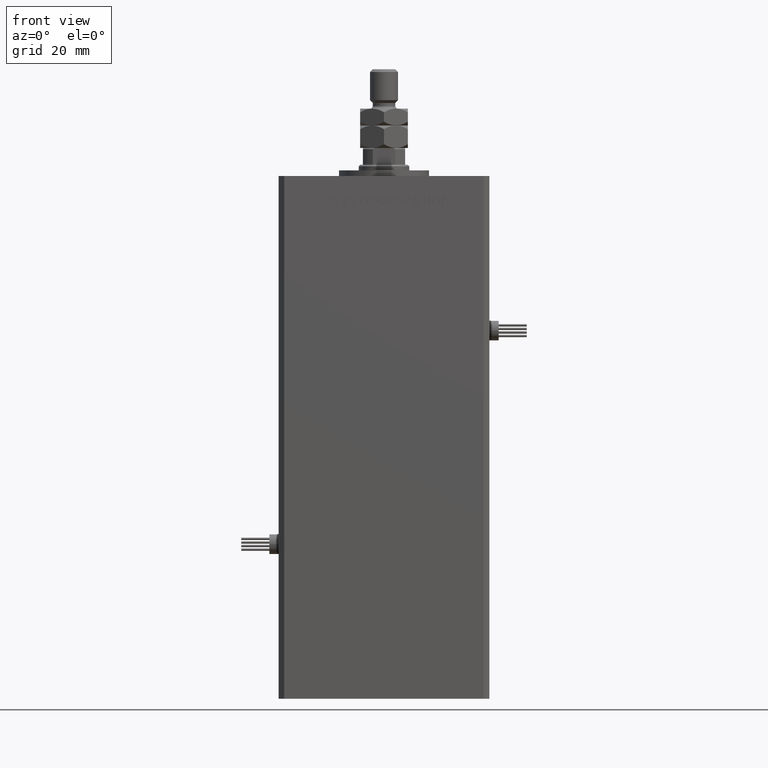
[diagram: clean part render]
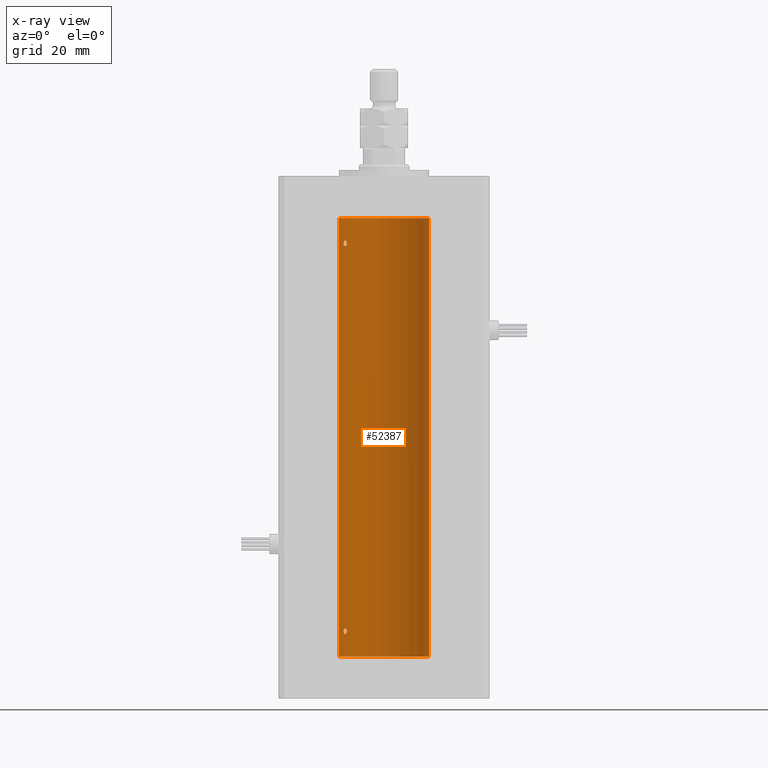
[diagram: x-ray — body ghosted, one internal face saturated and labeled with its STEP entity id]
A machine part, front view, then the same camera in x-ray: the body is ghosted and one INTERNAL B-rep face — a face not visible from any outside direction — is saturated and labeled: STEP entity #52387.
In plain terms, the highlighted cylindrical surface (partial cylindrical patch) has radius 16 mm, axis along (-0, -0, -1).
Its self-contained STEP definition (entity closure, byte-faithful):
#478 = CARTESIAN_POINT ( 'NONE',  ( -14.38749456993815912, 6.999999999999998224, 147.0000000000000284 ) ) ;
#773 = CARTESIAN_POINT ( 'NONE',  ( -14.37250282441143945, 7.031013007322939323, 146.7168569960373077 ) ) ;
#1608 = CARTESIAN_POINT ( 'NONE',  ( -14.27547848986622370, 7.226527013162184154, 146.3525557301815354 ) ) ;
#1682 = CARTESIAN_POINT ( 'NONE',  ( -13.22875655532295802, 8.999999999999996447, 147.0000000000000284 ) ) ;
#2879 = LINE ( 'NONE', #16329, #41179 ) ;
#3134 = EDGE_CURVE ( 'NONE', #19337, #31046, #45391, .T. ) ;
#3136 = CARTESIAN_POINT ( 'NONE',  ( -13.91892506969882959, 7.891973478508852224, 10.00155212263243953 ) ) ;
#3388 = CARTESIAN_POINT ( 'NONE',  ( 0.000000000000000000, 0.000000000000000000, 0.000000000000000000 ) ) ;
#3419 = CARTESIAN_POINT ( 'NONE',  ( -13.22875655532295447, 8.999999999999996447, 9.140644760917734146 ) ) ;
#3646 = VERTEX_POINT ( 'NONE', #1682 ) ;
#3853 = CARTESIAN_POINT ( 'NONE',  ( -14.38749456993815556, 6.999999999999997335, 8.857147409635411250 ) ) ;
#4130 = CARTESIAN_POINT ( 'NONE',  ( -14.27547848986622014, 7.226527013162185931, 8.352555730181528304 ) ) ;
#4875 = CARTESIAN_POINT ( 'NONE',  ( -13.98878315975728803, 7.767347947480344850, 147.9805461432612788 ) ) ;
#5042 = CARTESIAN_POINT ( 'NONE',  ( -13.98699950016872151, 7.770591669637114229, 146.0184768166484446 ) ) ;
#5442 = CARTESIAN_POINT ( 'NONE',  ( -13.91892506969882071, 7.891973478508848672, 148.0015521226324040 ) ) ;
#5711 = CARTESIAN_POINT ( 'NONE',  ( -14.27521483392928836, 7.227035590538638310, 147.6478598706881940 ) ) ;
#6264 = AXIS2_PLACEMENT_3D ( 'NONE', #3388, #42127, #29771 ) ;
#6919 = CARTESIAN_POINT ( 'NONE',  ( -16.00000000000000000, 0.000000000000000000, 0.000000000000000000 ) ) ;
#7151 = DIRECTION ( 'NONE',  ( -0.000000000000000000, -0.000000000000000000, -1.000000000000000000 ) ) ;
#7230 = EDGE_CURVE ( 'NONE', #24868, #49492, #20538, .T. ) ;
#7569 = CARTESIAN_POINT ( 'NONE',  ( -13.22875655532295447, 8.999999999999996447, 9.000000000000000000 ) ) ;
#8546 = CARTESIAN_POINT ( 'NONE',  ( -13.98878315975729159, 7.767347947480346626, 9.980546143261280534 ) ) ;
#8834 = CARTESIAN_POINT ( 'NONE',  ( -13.32457971225032445, 8.857769707964649797, 9.531999662746555302 ) ) ;
#9072 = CARTESIAN_POINT ( 'NONE',  ( -13.25390108270225120, 8.962947079338391632, 146.7214357623584533 ) ) ;
#9457 = CARTESIAN_POINT ( 'NONE',  ( -14.17576283486774891, 7.420212263225987925, 147.8252530343044100 ) ) ;
#9678 = B_SPLINE_CURVE_WITH_KNOTS ( 'NONE', 3,
 ( #478, #49244, #773, #18507, #1608, #27132, #52972, #5042, #44652, #19061, #40621, #13650, #14210, #14765, #48408, #40342, #9072, #44368, #10199, #18227 ),
 .UNSPECIFIED., .F., .F.,
 ( 4, 2, 2, 2, 2, 2, 2, 2, 2, 4 ),
 ( 0.000000000000000000, 0.0004222090241339633240, 0.0008444180482679266480, 0.001266627072401889809, 0.001688836096535853296, 0.002111045120669816783, 0.002533254144803779619, 0.002955463168937742888, 0.003166567681004761603, 0.003377672193071779884 ),
 .UNSPECIFIED. ) ;
#9859 = ORIENTED_EDGE ( 'NONE', *, *, #36716, .F. ) ;
#9895 = B_SPLINE_CURVE_WITH_KNOTS ( 'NONE', 3,
 ( #12849, #3419, #51323, #8834, #56489, #12572, #30368, #3136, #8546, #42713, #26052, #43563, #16577, #38413, #39261, #25206 ),
 .UNSPECIFIED., .F., .F.,
 ( 4, 2, 2, 2, 2, 2, 2, 4 ),
 ( 0.003377672193071777282, 0.003799209865779874882, 0.004220747538487972482, 0.005063822883904168549, 0.005485360556612268318, 0.005906898229320367219, 0.006328435902028466120, 0.006749973574736565889 ),
 .UNSPECIFIED. ) ;
#10039 = FACE_BOUND ( 'NONE', #11827, .T. ) ;
#10199 = CARTESIAN_POINT ( 'NONE',  ( -13.22875655532295625, 8.999999999999994671, 146.9295656223616504 ) ) ;
#11593 = CARTESIAN_POINT ( 'NONE',  ( -13.56386909142669950, 8.487613976483636691, 8.118224297996075478 ) ) ;
#11827 = EDGE_LOOP ( 'NONE', ( #53211, #39700 ) ) ;
#11870 = CARTESIAN_POINT ( 'NONE',  ( 16.00000000000000000, 1.959434878635765131E-15, 0.000000000000000000 ) ) ;
#12158 = CARTESIAN_POINT ( 'NONE',  ( -13.91838063522420832, 7.892966471903941184, 7.998148313308679036 ) ) ;
#12572 = CARTESIAN_POINT ( 'NONE',  ( -13.55800260393082546, 8.498809056167521803, 9.903643446210175227 ) ) ;
#12849 = CARTESIAN_POINT ( 'NONE',  ( -13.22875655532295447, 8.999999999999996447, 9.000000000000000000 ) ) ;
#13354 = DIRECTION ( 'NONE',  ( -0.000000000000000000, 0.000000000000000000, 1.000000000000000000 ) ) ;
#13467 = CARTESIAN_POINT ( 'NONE',  ( -13.55800260393081835, 8.498809056167509368, 147.9036434462101397 ) ) ;
#13650 = CARTESIAN_POINT ( 'NONE',  ( -13.56386909142669772, 8.487613976483636691, 146.1182242979961359 ) ) ;
#14034 = CARTESIAN_POINT ( 'NONE',  ( -13.24976519864029179, 8.969293778684573226, 147.2815352263351940 ) ) ;
#14210 = CARTESIAN_POINT ( 'NONE',  ( -13.49759407097375075, 8.592283911330223845, 146.1840991521277147 ) ) ;
#14765 = CARTESIAN_POINT ( 'NONE',  ( -13.37674940693422876, 8.779234808442867077, 146.3602441571267718 ) ) ;
#14875 = VERTEX_POINT ( 'NONE', #42826 ) ;
#16176 = CARTESIAN_POINT ( 'NONE',  ( -13.32426099938365027, 8.858246960865852060, 8.468874877532968526 ) ) ;
#16329 = CARTESIAN_POINT ( 'NONE',  ( -16.00000000000000000, 0.000000000000000000, 156.0000000000000000 ) ) ;
#16577 = CARTESIAN_POINT ( 'NONE',  ( -14.31650799088418324, 7.144337649771912879, 9.535522627373689275 ) ) ;
#16736 = CARTESIAN_POINT ( 'NONE',  ( -13.37674940693422521, 8.779234808442870630, 8.360244157126784259 ) ) ;
#17236 = CIRCLE ( 'NONE', #6264, 16.00000000000000000 ) ;
#17762 = CARTESIAN_POINT ( 'NONE',  ( -14.38749456993815912, 6.999999999999998224, 147.0000000000000284 ) ) ;
#18227 = CARTESIAN_POINT ( 'NONE',  ( -13.22875655532295802, 8.999999999999996447, 147.0000000000000284 ) ) ;
#18507 = CARTESIAN_POINT ( 'NONE',  ( -14.31660136508398828, 7.144151923086063505, 146.4646217954444865 ) ) ;
#19061 = CARTESIAN_POINT ( 'NONE',  ( -13.77582987033440709, 8.139210687602719929, 146.0021105458418447 ) ) ;
#19337 = VERTEX_POINT ( 'NONE', #45529 ) ;
#19866 = ORIENTED_EDGE ( 'NONE', *, *, #32598, .F. ) ;
#20538 = CIRCLE ( 'NONE', #30689, 16.00000000000000000 ) ;
#20764 = CARTESIAN_POINT ( 'NONE',  ( -13.70481462797718031, 8.258098555717506173, 8.025997477291133109 ) ) ;
#21323 = CARTESIAN_POINT ( 'NONE',  ( -14.17528142432533755, 7.421143801852455368, 8.173943073538659121 ) ) ;
#21604 = CARTESIAN_POINT ( 'NONE',  ( -13.77582987033441064, 8.139210687602712824, 8.002110545841816247 ) ) ;
#22901 = CARTESIAN_POINT ( 'NONE',  ( -16.00000000000000000, 0.000000000000000000, 156.0000000000000000 ) ) ;
#22932 = CARTESIAN_POINT ( 'NONE',  ( -14.11618354197461400, 7.533333301880474231, 147.8932076519334373 ) ) ;
#23066 = CARTESIAN_POINT ( 'NONE',  ( 16.00000000000000000, 1.959434878635765131E-15, 156.0000000000000000 ) ) ;
#24790 = CARTESIAN_POINT ( 'NONE',  ( -13.98699950016872151, 7.770591669637119558, 8.018476816648481886 ) ) ;
#24868 = VERTEX_POINT ( 'NONE', #29654 ) ;
#25206 = CARTESIAN_POINT ( 'NONE',  ( -14.38749456993815912, 6.999999999999997335, 9.000000000000000000 ) ) ;
#26052 = CARTESIAN_POINT ( 'NONE',  ( -14.17576283486774535, 7.420212263225985261, 9.825253034304354927 ) ) ;
#26311 = ORIENTED_EDGE ( 'NONE', *, *, #7230, .T. ) ;
#26677 = CARTESIAN_POINT ( 'NONE',  ( -13.37741691572086111, 8.778212469423007036, 147.6408828602271512 ) ) ;
#27132 = CARTESIAN_POINT ( 'NONE',  ( -14.17528142432533755, 7.421143801852455368, 146.1739430735387089 ) ) ;
#27250 = CARTESIAN_POINT ( 'NONE',  ( -13.22875655532295802, 8.999999999999996447, 147.0000000000000284 ) ) ;
#29392 = CARTESIAN_POINT ( 'NONE',  ( -13.22875655532295092, 8.999999999999994671, 8.929565622361636201 ) ) ;
#29589 = EDGE_CURVE ( 'NONE', #49492, #44612, #2879, .T. ) ;
#29654 = CARTESIAN_POINT ( 'NONE',  ( 16.00000000000000000, 1.959434878635765131E-15, 156.0000000000000000 ) ) ;
#29771 = DIRECTION ( 'NONE',  ( 1.000000000000000000, 0.000000000000000000, 0.000000000000000000 ) ) ;
#30368 = CARTESIAN_POINT ( 'NONE',  ( -13.70792461986390620, 8.256614593260307444, 9.996621535642271184 ) ) ;
#30689 = AXIS2_PLACEMENT_3D ( 'NONE', #52681, #13354, #35461 ) ;
#31046 = VERTEX_POINT ( 'NONE', #49480 ) ;
#31457 = EDGE_CURVE ( 'NONE', #43401, #44612, #17236, .T. ) ;
#31640 = AXIS2_PLACEMENT_3D ( 'NONE', #36147, #32401, #45610 ) ;
#31954 = EDGE_LOOP ( 'NONE', ( #47675, #19866 ) ) ;
#32401 = DIRECTION ( 'NONE',  ( -0.000000000000000000, -0.000000000000000000, -1.000000000000000000 ) ) ;
#32598 = EDGE_CURVE ( 'NONE', #31046, #19337, #9895, .T. ) ;
#33417 = ORIENTED_EDGE ( 'NONE', *, *, #29589, .T. ) ;
#34364 = ORIENTED_EDGE ( 'NONE', *, *, #31457, .F. ) ;
#34824 = CARTESIAN_POINT ( 'NONE',  ( -14.37250282441143767, 7.031013007322936659, 8.716856996037261496 ) ) ;
#34905 = EDGE_CURVE ( 'NONE', #14875, #3646, #9678, .T. ) ;
#35461 = DIRECTION ( 'NONE',  ( 1.000000000000000000, 0.000000000000000000, 0.000000000000000000 ) ) ;
#35570 = CARTESIAN_POINT ( 'NONE',  ( -13.70792461986390798, 8.256614593260307444, 147.9966215356423334 ) ) ;
#36147 = CARTESIAN_POINT ( 'NONE',  ( 0.000000000000000000, 0.000000000000000000, 156.0000000000000000 ) ) ;
#36430 = FACE_OUTER_BOUND ( 'NONE', #51728, .T. ) ;
#36716 = EDGE_CURVE ( 'NONE', #24868, #43401, #48366, .T. ) ;
#38413 = CARTESIAN_POINT ( 'NONE',  ( -14.37227256866306213, 7.031482256185707769, 9.284457240976479397 ) ) ;
#38540 = CARTESIAN_POINT ( 'NONE',  ( -14.38749456993815734, 6.999999999999997335, 147.1426254415242738 ) ) ;
#38571 = CARTESIAN_POINT ( 'NONE',  ( -14.11621438951177332, 7.533308783217010252, 8.106571071839512754 ) ) ;
#38848 = CARTESIAN_POINT ( 'NONE',  ( -13.49759407097374897, 8.592283911330223845, 8.184099152127670251 ) ) ;
#39261 = CARTESIAN_POINT ( 'NONE',  ( -14.38749456993816445, 6.999999999999997335, 9.142625441524202756 ) ) ;
#39456 = VECTOR ( 'NONE', #39723, 1000.000000000000000 ) ;
#39700 = ORIENTED_EDGE ( 'NONE', *, *, #42160, .F. ) ;
#39723 = DIRECTION ( 'NONE',  ( -0.000000000000000000, -0.000000000000000000, -1.000000000000000000 ) ) ;
#40164 = CARTESIAN_POINT ( 'NONE',  ( -14.31650799088418147, 7.144337649771908438, 147.5355226273736946 ) ) ;
#40342 = CARTESIAN_POINT ( 'NONE',  ( -13.26838749541400908, 8.941532915076043864, 146.6562177939213711 ) ) ;
#40621 = CARTESIAN_POINT ( 'NONE',  ( -13.70481462797717676, 8.258098555717509726, 146.0259974772911562 ) ) ;
#41179 = VECTOR ( 'NONE', #7151, 1000.000000000000000 ) ;
#41573 = CYLINDRICAL_SURFACE ( 'NONE', #31640, 16.00000000000000000 ) ;
#42127 = DIRECTION ( 'NONE',  ( -0.000000000000000000, 0.000000000000000000, 1.000000000000000000 ) ) ;
#42160 = EDGE_CURVE ( 'NONE', #3646, #14875, #51571, .T. ) ;
#42296 = CARTESIAN_POINT ( 'NONE',  ( -13.25390108270225298, 8.962947079338388079, 8.721435762358455079 ) ) ;
#42713 = CARTESIAN_POINT ( 'NONE',  ( -14.11618354197461400, 7.533333301880478672, 9.893207651933416003 ) ) ;
#42826 = CARTESIAN_POINT ( 'NONE',  ( -14.38749456993815912, 6.999999999999998224, 147.0000000000000284 ) ) ;
#43401 = VERTEX_POINT ( 'NONE', #11870 ) ;
#43563 = CARTESIAN_POINT ( 'NONE',  ( -14.27521483392929014, 7.227035590538633869, 9.647859870688195727 ) ) ;
#44193 = CARTESIAN_POINT ( 'NONE',  ( -13.22875655532296157, 8.999999999999994671, 147.1406447609177803 ) ) ;
#44368 = CARTESIAN_POINT ( 'NONE',  ( -13.23400746336172240, 8.992294519018086518, 146.8578145590230406 ) ) ;
#44612 = VERTEX_POINT ( 'NONE', #6919 ) ;
#44652 = CARTESIAN_POINT ( 'NONE',  ( -13.91838063522421010, 7.892966471903945624, 145.9981483133087465 ) ) ;
#44761 = CARTESIAN_POINT ( 'NONE',  ( -13.32457971225032622, 8.857769707964648020, 147.5319996627465855 ) ) ;
#45391 = B_SPLINE_CURVE_WITH_KNOTS ( 'NONE', 3,
 ( #56074, #3853, #34824, #55498, #4130, #21323, #38571, #24790, #12158, #21604, #20764, #11593, #38848, #16736, #16176, #56356, #42296, #46629, #29392, #7569 ),
 .UNSPECIFIED., .F., .F.,
 ( 4, 2, 2, 2, 2, 2, 2, 2, 2, 4 ),
 ( 0.000000000000000000, 0.0004222090241339719976, 0.0008444180482679439952, 0.001266627072401915830, 0.001688836096535887990, 0.002111045120669860151, 0.002533254144803831660, 0.002955463168937803604, 0.003166567681004790660, 0.003377672193071777282 ),
 .UNSPECIFIED. ) ;
#45529 = CARTESIAN_POINT ( 'NONE',  ( -14.38749456993815912, 6.999999999999997335, 9.000000000000000000 ) ) ;
#45610 = DIRECTION ( 'NONE',  ( -1.000000000000000000, 0.000000000000000000, 0.000000000000000000 ) ) ;
#46629 = CARTESIAN_POINT ( 'NONE',  ( -13.23400746336172951, 8.992294519018086518, 8.857814559023015732 ) ) ;
#47675 = ORIENTED_EDGE ( 'NONE', *, *, #3134, .F. ) ;
#48366 = LINE ( 'NONE', #23066, #39456 ) ;
#48408 = CARTESIAN_POINT ( 'NONE',  ( -13.32426099938365383, 8.858246960865844954, 146.4688748775330112 ) ) ;
#49244 = CARTESIAN_POINT ( 'NONE',  ( -14.38749456993816267, 6.999999999999999112, 146.8571474096354450 ) ) ;
#49361 = CARTESIAN_POINT ( 'NONE',  ( -14.37227256866306213, 7.031482256185711321, 147.2844572409765078 ) ) ;
#49480 = CARTESIAN_POINT ( 'NONE',  ( -13.22875655532295447, 8.999999999999996447, 9.000000000000000000 ) ) ;
#49492 = VERTEX_POINT ( 'NONE', #22901 ) ;
#51323 = CARTESIAN_POINT ( 'NONE',  ( -13.24976519864029179, 8.969293778684576779, 9.281535226335156707 ) ) ;
#51571 = B_SPLINE_CURVE_WITH_KNOTS ( 'NONE', 3,
 ( #27250, #44193, #14034, #44761, #26677, #13467, #35570, #5442, #4875, #22932, #9457, #5711, #40164, #49361, #38540, #17762 ),
 .UNSPECIFIED., .F., .F.,
 ( 4, 2, 2, 2, 2, 2, 2, 4 ),
 ( 0.003377672193071779884, 0.003799209865779855366, 0.004220747538487930849, 0.005063822883904134722, 0.005485360556612237093, 0.005906898229320339463, 0.006328435902028442701, 0.006749973574736545072 ),
 .UNSPECIFIED. ) ;
#51728 = EDGE_LOOP ( 'NONE', ( #9859, #26311, #33417, #34364 ) ) ;
#52387 = ADVANCED_FACE ( 'NONE', ( #36430, #53651, #10039 ), #41573, .F. ) ;
#52681 = CARTESIAN_POINT ( 'NONE',  ( 0.000000000000000000, 0.000000000000000000, 156.0000000000000000 ) ) ;
#52972 = CARTESIAN_POINT ( 'NONE',  ( -14.11621438951177687, 7.533308783217008475, 146.1065710718395110 ) ) ;
#53211 = ORIENTED_EDGE ( 'NONE', *, *, #34905, .F. ) ;
#53651 = FACE_BOUND ( 'NONE', #31954, .T. ) ;
#55498 = CARTESIAN_POINT ( 'NONE',  ( -14.31660136508399184, 7.144151923086058176, 8.464621795444474017 ) ) ;
#56074 = CARTESIAN_POINT ( 'NONE',  ( -14.38749456993815912, 6.999999999999997335, 9.000000000000000000 ) ) ;
#56356 = CARTESIAN_POINT ( 'NONE',  ( -13.26838749541400198, 8.941532915076040311, 8.656217793921369363 ) ) ;
#56489 = CARTESIAN_POINT ( 'NONE',  ( -13.37741691572085934, 8.778212469423014142, 9.640882860227099727 ) ) ;